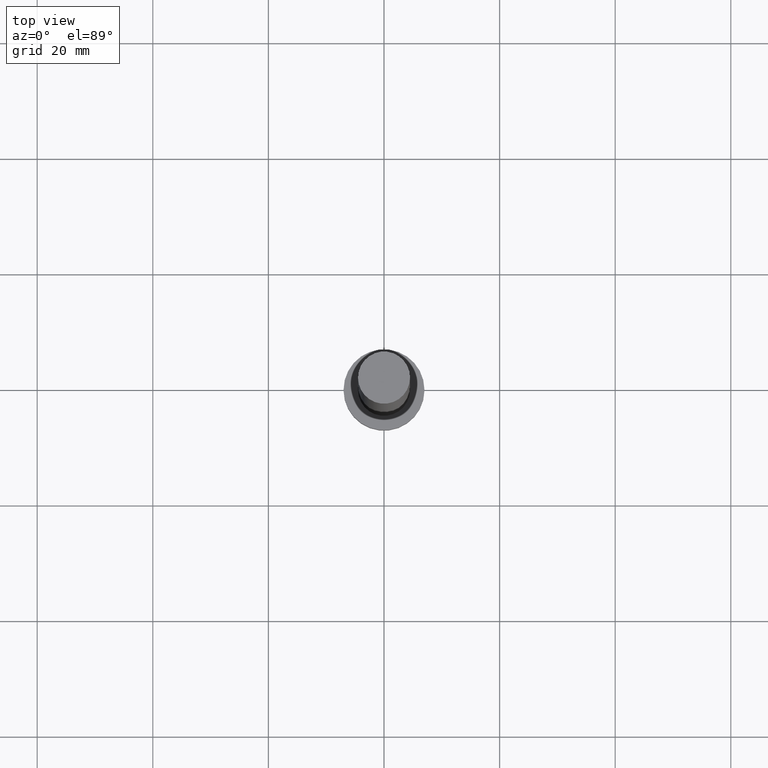
[diagram: clean part render]
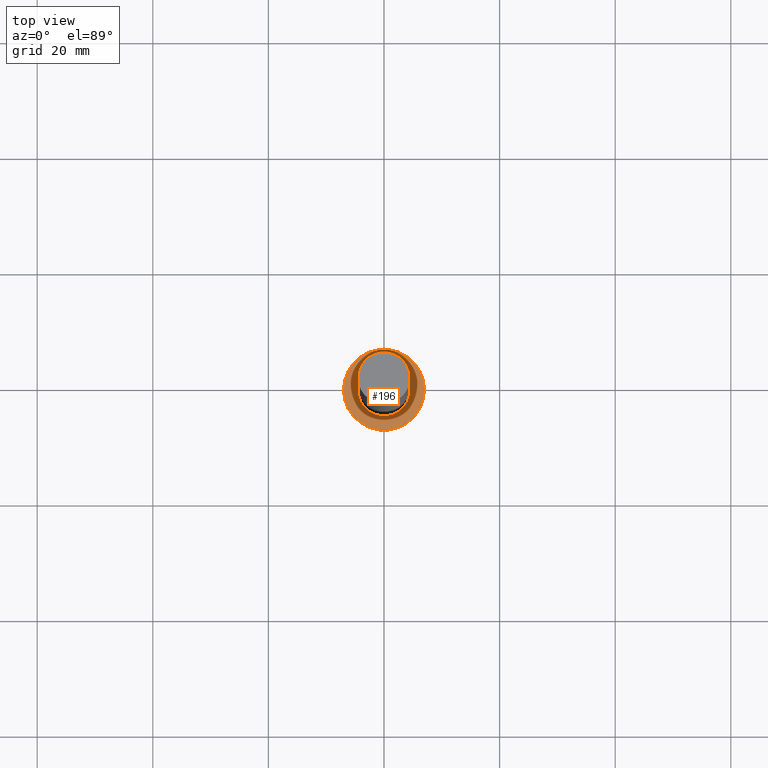
[diagram: same view with one face highlighted and labeled with its STEP entity id]
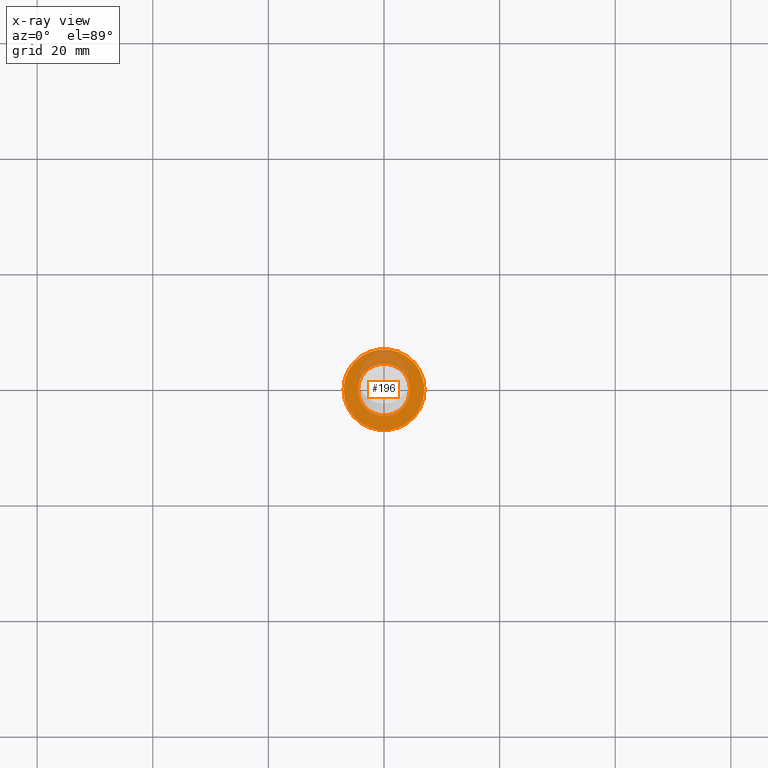
[diagram: x-ray of the same camera — body ghosted, the highlighted face saturated]
A machine part, top view. The second image highlights one B-rep face of the part: STEP entity #196.
The next image is the same camera in x-ray: the body ghosted, the highlighted face saturated — about 21% of this face is hidden behind the body in this view.
In plain terms, the highlighted planar face has unit normal (0, 0, 1).
Its self-contained STEP definition (entity closure, byte-faithful):
#11 = AXIS2_PLACEMENT_3D ( 'NONE', #107, #135, #28 ) ;
#18 = DIRECTION ( 'NONE',  ( 1.000000000000000000, 0.000000000000000000, -0.000000000000000000 ) ) ;
#19 = CIRCLE ( 'NONE', #98, 7.000000000000000000 ) ;
#20 = CARTESIAN_POINT ( 'NONE',  ( 4.500000000000000888, 5.510910596163089556E-16, 5.000000000000000000 ) ) ;
#21 = DIRECTION ( 'NONE',  ( 0.000000000000000000, 0.000000000000000000, 1.000000000000000000 ) ) ;
#27 = VERTEX_POINT ( 'NONE', #212 ) ;
#28 = DIRECTION ( 'NONE',  ( 1.000000000000000000, 0.000000000000000000, 0.000000000000000000 ) ) ;
#32 = CIRCLE ( 'NONE', #56, 4.500000000000000888 ) ;
#36 = CARTESIAN_POINT ( 'NONE',  ( -4.500000000000000888, 0.000000000000000000, 5.000000000000000000 ) ) ;
#48 = VERTEX_POINT ( 'NONE', #217 ) ;
#52 = EDGE_LOOP ( 'NONE', ( #245, #185 ) ) ;
#56 = AXIS2_PLACEMENT_3D ( 'NONE', #84, #81, #227 ) ;
#58 = CARTESIAN_POINT ( 'NONE',  ( 0.000000000000000000, 0.000000000000000000, 5.000000000000000000 ) ) ;
#74 = CARTESIAN_POINT ( 'NONE',  ( 0.000000000000000000, 0.000000000000000000, 5.000000000000000000 ) ) ;
#77 = DIRECTION ( 'NONE',  ( 1.000000000000000000, 0.000000000000000000, 0.000000000000000000 ) ) ;
#78 = FACE_OUTER_BOUND ( 'NONE', #52, .T. ) ;
#81 = DIRECTION ( 'NONE',  ( 0.000000000000000000, 0.000000000000000000, 1.000000000000000000 ) ) ;
#83 = AXIS2_PLACEMENT_3D ( 'NONE', #240, #178, #115 ) ;
#84 = CARTESIAN_POINT ( 'NONE',  ( 0.000000000000000000, 0.000000000000000000, 5.000000000000000000 ) ) ;
#85 = VERTEX_POINT ( 'NONE', #36 ) ;
#96 = EDGE_CURVE ( 'NONE', #166, #85, #164, .T. ) ;
#98 = AXIS2_PLACEMENT_3D ( 'NONE', #74, #21, #77 ) ;
#107 = CARTESIAN_POINT ( 'NONE',  ( 0.000000000000000000, 0.000000000000000000, 5.000000000000000000 ) ) ;
#108 = ORIENTED_EDGE ( 'NONE', *, *, #96, .F. ) ;
#113 = EDGE_CURVE ( 'NONE', #48, #27, #19, .T. ) ;
#114 = CIRCLE ( 'NONE', #11, 7.000000000000000000 ) ;
#115 = DIRECTION ( 'NONE',  ( 1.000000000000000000, 0.000000000000000000, 0.000000000000000000 ) ) ;
#118 = PLANE ( 'NONE',  #129 ) ;
#124 = EDGE_LOOP ( 'NONE', ( #182, #108 ) ) ;
#129 = AXIS2_PLACEMENT_3D ( 'NONE', #58, #130, #18 ) ;
#130 = DIRECTION ( 'NONE',  ( 0.000000000000000000, 0.000000000000000000, 1.000000000000000000 ) ) ;
#135 = DIRECTION ( 'NONE',  ( 0.000000000000000000, 0.000000000000000000, 1.000000000000000000 ) ) ;
#164 = CIRCLE ( 'NONE', #83, 4.500000000000000888 ) ;
#166 = VERTEX_POINT ( 'NONE', #20 ) ;
#178 = DIRECTION ( 'NONE',  ( 0.000000000000000000, 0.000000000000000000, 1.000000000000000000 ) ) ;
#182 = ORIENTED_EDGE ( 'NONE', *, *, #221, .F. ) ;
#185 = ORIENTED_EDGE ( 'NONE', *, *, #113, .T. ) ;
#196 = ADVANCED_FACE ( 'NONE', ( #199, #78 ), #118, .T. ) ;
#199 = FACE_BOUND ( 'NONE', #124, .T. ) ;
#212 = CARTESIAN_POINT ( 'NONE',  ( -7.000000000000000000, 0.000000000000000000, 5.000000000000000000 ) ) ;
#217 = CARTESIAN_POINT ( 'NONE',  ( 7.000000000000000000, 8.572527594031473190E-16, 5.000000000000000000 ) ) ;
#221 = EDGE_CURVE ( 'NONE', #85, #166, #32, .T. ) ;
#227 = DIRECTION ( 'NONE',  ( 1.000000000000000000, 0.000000000000000000, 0.000000000000000000 ) ) ;
#235 = EDGE_CURVE ( 'NONE', #27, #48, #114, .T. ) ;
#240 = CARTESIAN_POINT ( 'NONE',  ( 0.000000000000000000, 0.000000000000000000, 5.000000000000000000 ) ) ;
#245 = ORIENTED_EDGE ( 'NONE', *, *, #235, .T. ) ;